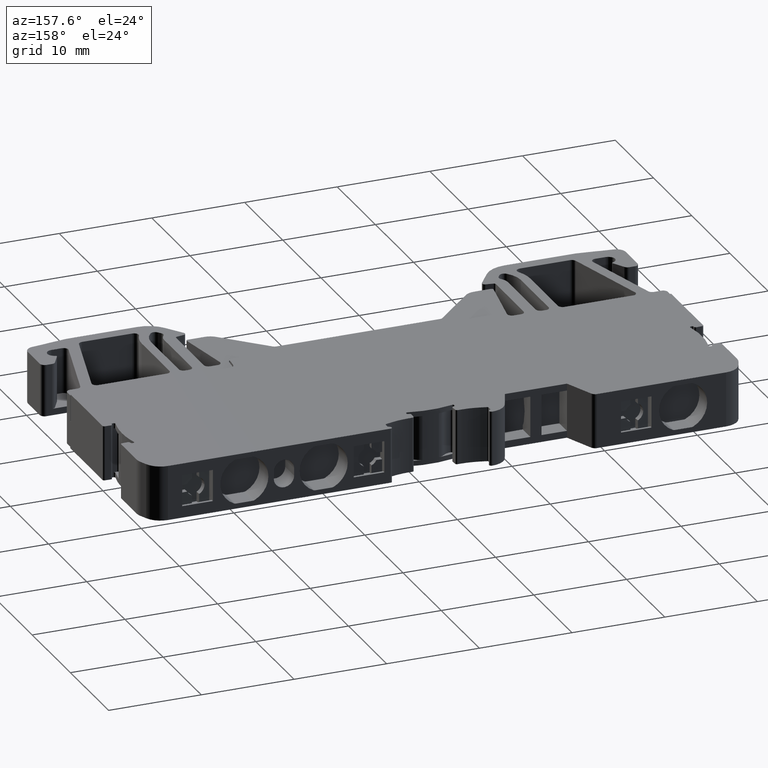
[diagram: clean part render]
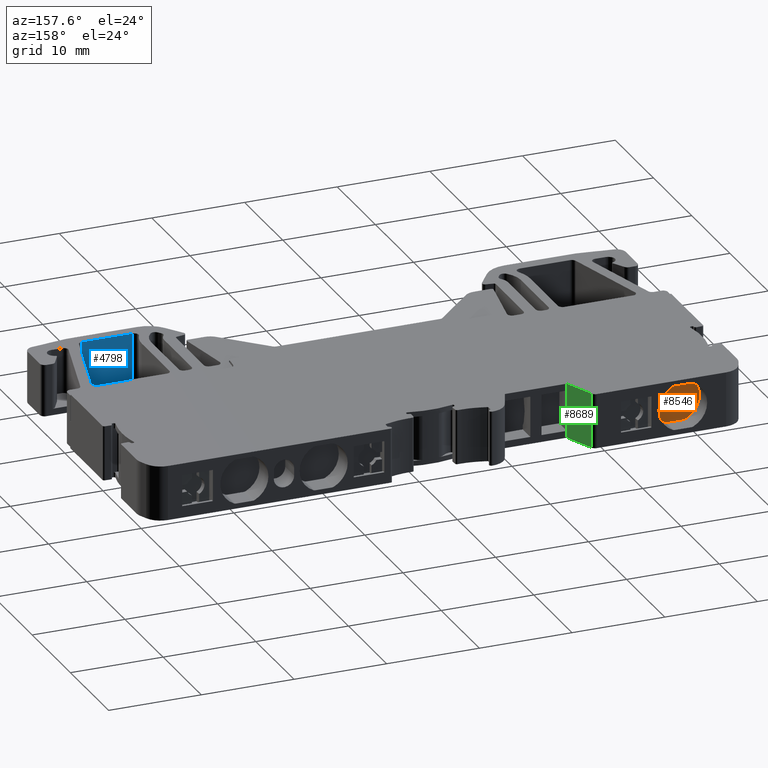
[diagram: same view with three faces highlighted in distinct colors, each labeled with its STEP entity id]
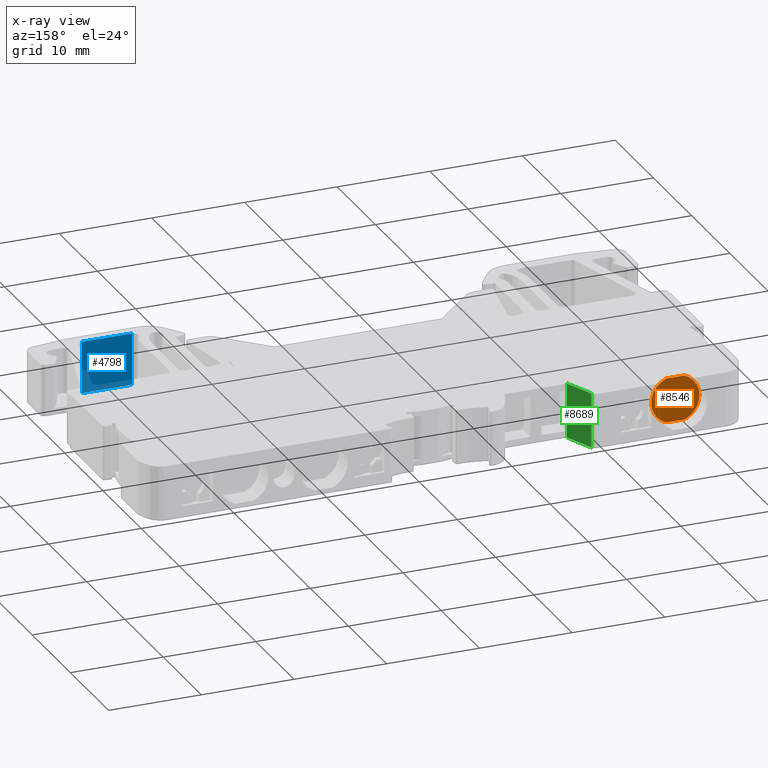
[diagram: x-ray of the same camera — body ghosted, the three highlighted faces saturated]
A machine part, auxiliary view with three faces highlighted in distinct colors.
The next image is the same camera in x-ray (body ghosted, the three faces saturated) — at least one of them is partly hidden behind the body in this view.
Their STEP definitions:

[orange] entity #8546 — the highlighted planar face has unit normal (0, 1, 0).
#2839 = VECTOR ( 'NONE', #11853, 1000.000000000000000 ) ;
#2843 = CIRCLE ( 'NONE', #2864, 0.4999999999999995600 ) ;
#2864 = AXIS2_PLACEMENT_3D ( 'NONE', #11866, #11854, #11864 ) ;
#2910 = CIRCLE ( 'NONE', #2911, 2.599999464194735000 ) ;
#2911 = AXIS2_PLACEMENT_3D ( 'NONE', #12035, #12044, #12016 ) ;
#2920 = AXIS2_PLACEMENT_3D ( 'NONE', #12100, #12106, #12101 ) ;
#2929 = AXIS2_PLACEMENT_3D ( 'NONE', #12068, #12058, #12066 ) ;
#2933 = CIRCLE ( 'NONE', #2929, 0.4999999999999995600 ) ;
#2938 = CIRCLE ( 'NONE', #2920, 0.5000000000000000000 ) ;
#2944 = AXIS2_PLACEMENT_3D ( 'NONE', #12063, #12064, #12110 ) ;
#2948 = VECTOR ( 'NONE', #12070, 1000.000000000000000 ) ;
#2949 = CIRCLE ( 'NONE', #2944, 2.599999464194735000 ) ;
#2965 = CIRCLE ( 'NONE', #2989, 0.5000000000000000000 ) ;
#2989 = AXIS2_PLACEMENT_3D ( 'NONE', #12158, #12159, #12160 ) ;
#3179 = ORIENTED_EDGE ( 'NONE', *, *, #8404, .T. ) ;
#3220 = ORIENTED_EDGE ( 'NONE', *, *, #8369, .T. ) ;
#3263 = ORIENTED_EDGE ( 'NONE', *, *, #8362, .T. ) ;
#3270 = ORIENTED_EDGE ( 'NONE', *, *, #8364, .F. ) ;
#3280 = ORIENTED_EDGE ( 'NONE', *, *, #8299, .T. ) ;
#3282 = ORIENTED_EDGE ( 'NONE', *, *, #8379, .T. ) ;
#3285 = ORIENTED_EDGE ( 'NONE', *, *, #8300, .F. ) ;
#3287 = ORIENTED_EDGE ( 'NONE', *, *, #8360, .T. ) ;
#3863 = EDGE_LOOP ( 'NONE', ( #3285, #3263, #3220, #3282, #3270, #3179, #3287, #3280 ) ) ;
#6797 = VERTEX_POINT ( 'NONE', #11224 ) ;
#6809 = VERTEX_POINT ( 'NONE', #11199 ) ;
#6830 = VERTEX_POINT ( 'NONE', #11290 ) ;
#6857 = VERTEX_POINT ( 'NONE', #11279 ) ;
#6875 = VERTEX_POINT ( 'NONE', #11311 ) ;
#6883 = VERTEX_POINT ( 'NONE', #11261 ) ;
#6891 = VERTEX_POINT ( 'NONE', #11371 ) ;
#6900 = VERTEX_POINT ( 'NONE', #11342 ) ;
#8299 = EDGE_CURVE ( 'NONE', #6875, #6797, #2843, .T. ) ;
#8300 = EDGE_CURVE ( 'NONE', #6830, #6797, #11848, .T. ) ;
#8360 = EDGE_CURVE ( 'NONE', #6900, #6875, #2910, .T. ) ;
#8362 = EDGE_CURVE ( 'NONE', #6830, #6857, #2933, .T. ) ;
#8364 = EDGE_CURVE ( 'NONE', #6809, #6883, #12052, .T. ) ;
#8369 = EDGE_CURVE ( 'NONE', #6857, #6891, #2949, .T. ) ;
#8379 = EDGE_CURVE ( 'NONE', #6891, #6883, #2938, .T. ) ;
#8404 = EDGE_CURVE ( 'NONE', #6809, #6900, #2965, .T. ) ;
#8546 = ADVANCED_FACE ( 'NONE', ( #13036 ), #13021, .T. ) ;
#9169 = AXIS2_PLACEMENT_3D ( 'NONE', #13008, #13006, #13016 ) ;
#11199 = CARTESIAN_POINT ( 'NONE',  ( -28.78601610234537100, -90.64413451042383900, 0.5000000000000000000 ) ) ;
#11224 = CARTESIAN_POINT ( 'NONE',  ( -28.78601610234537100, -90.64413451042383900, 5.299999999999999800 ) ) ;
#11261 = CARTESIAN_POINT ( 'NONE',  ( -26.99716423635066700, -90.64413451042383900, 0.5000000000000000000 ) ) ;
#11279 = CARTESIAN_POINT ( 'NONE',  ( -26.78420562653969500, -90.64413451042383900, 5.252381067803889400 ) ) ;
#11290 = CARTESIAN_POINT ( 'NONE',  ( -26.99716423635066700, -90.64413451042383900, 5.299999999999999800 ) ) ;
#11311 = CARTESIAN_POINT ( 'NONE',  ( -28.99897471215630400, -90.64413451042383900, 5.252381067803883100 ) ) ;
#11342 = CARTESIAN_POINT ( 'NONE',  ( -28.99897471215630400, -90.64413451042383900, 0.5476189321961166800 ) ) ;
#11371 = CARTESIAN_POINT ( 'NONE',  ( -26.78420562653968800, -90.64413451042383900, 0.5476189321961116900 ) ) ;
#11848 = LINE ( 'NONE', #11868, #2839 ) ;
#11853 = DIRECTION ( 'NONE',  ( -1.000000000000000000, 0.0000000000000000000, -0.0000000000000000000 ) ) ;
#11854 = DIRECTION ( 'NONE',  ( -0.0000000000000000000, 1.000000000000000000, -0.0000000000000000000 ) ) ;
#11864 = DIRECTION ( 'NONE',  ( -1.387778780781446900E-014, 0.0000000000000000000, -1.000000000000000000 ) ) ;
#11866 = CARTESIAN_POINT ( 'NONE',  ( -28.78601610234537100, -90.64413451042383900, 4.799999999999999800 ) ) ;
#11868 = CARTESIAN_POINT ( 'NONE',  ( -24.28236443227146800, -90.64413451042383900, 5.299999999999999800 ) ) ;
#12016 = DIRECTION ( 'NONE',  ( 1.334402948820669100E-015, 0.0000000000000000000, -1.000000000000000000 ) ) ;
#12035 = CARTESIAN_POINT ( 'NONE',  ( -27.89159016934796800, -90.64413451042383900, 2.899999999999999900 ) ) ;
#12044 = DIRECTION ( 'NONE',  ( -0.0000000000000000000, 1.000000000000000000, -0.0000000000000000000 ) ) ;
#12052 = LINE ( 'NONE', #12072, #2948 ) ;
#12058 = DIRECTION ( 'NONE',  ( -0.0000000000000000000, 1.000000000000000000, -0.0000000000000000000 ) ) ;
#12063 = CARTESIAN_POINT ( 'NONE',  ( -27.89159016934796800, -90.64413451042383900, 2.899999999999999900 ) ) ;
#12064 = DIRECTION ( 'NONE',  ( -0.0000000000000000000, 1.000000000000000000, -0.0000000000000000000 ) ) ;
#12066 = DIRECTION ( 'NONE',  ( -1.387778780781446900E-014, 0.0000000000000000000, -1.000000000000000000 ) ) ;
#12068 = CARTESIAN_POINT ( 'NONE',  ( -26.99716423635066700, -90.64413451042383900, 4.799999999999999800 ) ) ;
#12070 = DIRECTION ( 'NONE',  ( 1.000000000000000000, 0.0000000000000000000, -0.0000000000000000000 ) ) ;
#12072 = CARTESIAN_POINT ( 'NONE',  ( -24.28236443227146800, -90.64413451042383900, 0.5000000000000000000 ) ) ;
#12100 = CARTESIAN_POINT ( 'NONE',  ( -26.99716423635066700, -90.64413451042383900, 1.000000000000000000 ) ) ;
#12101 = DIRECTION ( 'NONE',  ( -2.775557561562891400E-014, 0.0000000000000000000, -1.000000000000000000 ) ) ;
#12106 = DIRECTION ( 'NONE',  ( -0.0000000000000000000, 1.000000000000000000, -0.0000000000000000000 ) ) ;
#12110 = DIRECTION ( 'NONE',  ( -1.334402948820669100E-015, 0.0000000000000000000, -1.000000000000000000 ) ) ;
#12158 = CARTESIAN_POINT ( 'NONE',  ( -28.78601610234537100, -90.64413451042383900, 1.000000000000000000 ) ) ;
#12159 = DIRECTION ( 'NONE',  ( -0.0000000000000000000, 1.000000000000000000, -0.0000000000000000000 ) ) ;
#12160 = DIRECTION ( 'NONE',  ( 0.0000000000000000000, 0.0000000000000000000, -1.000000000000000000 ) ) ;
#13006 = DIRECTION ( 'NONE',  ( 0.0000000000000000000, 1.000000000000000000, 0.0000000000000000000 ) ) ;
#13008 = CARTESIAN_POINT ( 'NONE',  ( -30.89789714336739500, -90.64413451042383900, -68.12189434494692400 ) ) ;
#13016 = DIRECTION ( 'NONE',  ( 0.0000000000000000000, -0.0000000000000000000, 1.000000000000000000 ) ) ;
#13021 = PLANE ( 'NONE',  #9169 ) ;
#13036 = FACE_OUTER_BOUND ( 'NONE', #3863, .T. ) ;

[blue] entity #4798 — the highlighted planar face has unit normal (0, -1, 0).
#438 = VECTOR ( 'NONE', #2048, 1000.000000000000000 ) ;
#600 = VECTOR ( 'NONE', #2570, 1000.000000000000000 ) ;
#745 = VECTOR ( 'NONE', #2107, 1000.000000000000000 ) ;
#1149 = VECTOR ( 'NONE', #1821, 1000.000000000000000 ) ;
#1812 = CARTESIAN_POINT ( 'NONE',  ( 18.48104946083881100, -120.3180765744508300, 5.700000000000000200 ) ) ;
#1821 = DIRECTION ( 'NONE',  ( 0.0000000000000000000, 0.0000000000000000000, -1.000000000000000000 ) ) ;
#1890 = LINE ( 'NONE', #1812, #1149 ) ;
#1994 = CARTESIAN_POINT ( 'NONE',  ( -53.74831438740593400, -120.3180765744508300, 0.1000000000000002600 ) ) ;
#2026 = LINE ( 'NONE', #1994, #438 ) ;
#2048 = DIRECTION ( 'NONE',  ( 1.000000000000000000, 0.0000000000000000000, 0.0000000000000000000 ) ) ;
#2107 = DIRECTION ( 'NONE',  ( 0.0000000000000000000, 0.0000000000000000000, -1.000000000000000000 ) ) ;
#2111 = CARTESIAN_POINT ( 'NONE',  ( 23.89256951862951800, -120.3180765744508300, 5.700000000000000200 ) ) ;
#2140 = LINE ( 'NONE', #2111, #745 ) ;
#2570 = DIRECTION ( 'NONE',  ( 1.000000000000000000, -0.0000000000000000000, -0.0000000000000000000 ) ) ;
#2582 = LINE ( 'NONE', #2594, #600 ) ;
#2594 = CARTESIAN_POINT ( 'NONE',  ( -53.89831438740593900, -120.3180765744508300, 5.700000000000000200 ) ) ;
#4798 = ADVANCED_FACE ( 'NONE', ( #10595 ), #10586, .F. ) ;
#7093 = VERTEX_POINT ( 'NONE', #12470 ) ;
#7107 = VERTEX_POINT ( 'NONE', #12434 ) ;
#7177 = VERTEX_POINT ( 'NONE', #11546 ) ;
#7210 = VERTEX_POINT ( 'NONE', #11555 ) ;
#7734 = ORIENTED_EDGE ( 'NONE', *, *, #10059, .T. ) ;
#7737 = ORIENTED_EDGE ( 'NONE', *, *, #9359, .F. ) ;
#7762 = ORIENTED_EDGE ( 'NONE', *, *, #9437, .T. ) ;
#7779 = ORIENTED_EDGE ( 'NONE', *, *, #9949, .F. ) ;
#9359 = EDGE_CURVE ( 'NONE', #7210, #7107, #1890, .T. ) ;
#9437 = EDGE_CURVE ( 'NONE', #7177, #7093, #2140, .T. ) ;
#9949 = EDGE_CURVE ( 'NONE', #7107, #7093, #2026, .T. ) ;
#10059 = EDGE_CURVE ( 'NONE', #7210, #7177, #2582, .T. ) ;
#10436 = AXIS2_PLACEMENT_3D ( 'NONE', #10596, #10627, #10629 ) ;
#10586 = PLANE ( 'NONE',  #10436 ) ;
#10595 = FACE_OUTER_BOUND ( 'NONE', #14444, .T. ) ;
#10596 = CARTESIAN_POINT ( 'NONE',  ( -53.74831438740593400, -120.3180765744508300, 5.700000000000000200 ) ) ;
#10627 = DIRECTION ( 'NONE',  ( 0.0000000000000000000, -1.000000000000000000, 0.0000000000000000000 ) ) ;
#10629 = DIRECTION ( 'NONE',  ( 0.0000000000000000000, 0.0000000000000000000, -1.000000000000000000 ) ) ;
#11546 = CARTESIAN_POINT ( 'NONE',  ( 23.89256951862951800, -120.3180765744508300, 5.700000000000000200 ) ) ;
#11555 = CARTESIAN_POINT ( 'NONE',  ( 18.48104946083881100, -120.3180765744508300, 5.700000000000000200 ) ) ;
#12434 = CARTESIAN_POINT ( 'NONE',  ( 18.48104946083881100, -120.3180765744508300, 0.1000000000000002600 ) ) ;
#12470 = CARTESIAN_POINT ( 'NONE',  ( 23.89256951862951800, -120.3180765744508300, 0.1000000000000002600 ) ) ;
#14444 = EDGE_LOOP ( 'NONE', ( #7737, #7734, #7762, #7779 ) ) ;

[green] entity #8689 — the highlighted planar face has unit normal (0.9239, 0.3827, -0).
#75 = CARTESIAN_POINT ( 'NONE',  ( -16.80856883384424100, -92.11814709042961600, -68.12189434494692400 ) ) ;
#76 = DIRECTION ( 'NONE',  ( -0.0000000000000000000, -0.0000000000000000000, -1.000000000000000000 ) ) ;
#87 = LINE ( 'NONE', #75, #8044 ) ;
#88 = LINE ( 'NONE', #101, #8132 ) ;
#101 = CARTESIAN_POINT ( 'NONE',  ( -16.91644963550811200, -91.85769524305830200, 5.849999999999994300 ) ) ;
#112 = DIRECTION ( 'NONE',  ( 0.3826777224417506900, -0.9238818976183018600, -0.0000000000000000000 ) ) ;
#113 = LINE ( 'NONE', #144, #8113 ) ;
#120 = LINE ( 'NONE', #123, #8108 ) ;
#122 = DIRECTION ( 'NONE',  ( -0.3826777224417520800, 0.9238818976183013100, 0.0000000000000000000 ) ) ;
#123 = CARTESIAN_POINT ( 'NONE',  ( -16.80857061631897800, -92.11814278707970500, -68.12189434494692400 ) ) ;
#124 = DIRECTION ( 'NONE',  ( -0.0000000000000000000, -0.0000000000000000000, -1.000000000000000000 ) ) ;
#144 = CARTESIAN_POINT ( 'NONE',  ( -16.80857061631897100, -92.11814278707970500, -0.05000000000000000300 ) ) ;
#197 = CARTESIAN_POINT ( 'NONE',  ( -18.13044554935527200, -88.92679860912450400, -68.12189434494692400 ) ) ;
#209 = LINE ( 'NONE', #197, #8135 ) ;
#212 = DIRECTION ( 'NONE',  ( 0.0000000000000000000, 0.0000000000000000000, 1.000000000000000000 ) ) ;
#2700 = VECTOR ( 'NONE', #11104, 1000.000000000000000 ) ;
#3070 = ORIENTED_EDGE ( 'NONE', *, *, #8953, .T. ) ;
#3074 = ORIENTED_EDGE ( 'NONE', *, *, #8957, .T. ) ;
#3081 = ORIENTED_EDGE ( 'NONE', *, *, #8987, .T. ) ;
#3088 = ORIENTED_EDGE ( 'NONE', *, *, #8944, .T. ) ;
#3096 = ORIENTED_EDGE ( 'NONE', *, *, #4932, .T. ) ;
#4421 = ORIENTED_EDGE ( 'NONE', *, *, #8954, .T. ) ;
#4932 = EDGE_CURVE ( 'NONE', #14708, #14703, #11087, .T. ) ;
#4969 = FACE_OUTER_BOUND ( 'NONE', #14342, .T. ) ;
#4971 = PLANE ( 'NONE',  #9659 ) ;
#4972 = CARTESIAN_POINT ( 'NONE',  ( -16.91644963550811200, -91.85769524305830200, -68.12189434494692400 ) ) ;
#4973 = DIRECTION ( 'NONE',  ( 0.9238818976183018600, 0.3826777224417506900, -0.0000000000000000000 ) ) ;
#4974 = DIRECTION ( 'NONE',  ( -0.3826777224417506900, 0.9238818976183018600, 0.0000000000000000000 ) ) ;
#5962 = CARTESIAN_POINT ( 'NONE',  ( -16.80856972508159300, -92.11814493875466800, 5.099999999999997000 ) ) ;
#5979 = CARTESIAN_POINT ( 'NONE',  ( -16.80856883384422000, -92.11814601459211400, 0.7000000000000031800 ) ) ;
#6006 = CARTESIAN_POINT ( 'NONE',  ( -16.80857002216071900, -92.11814422152967600, -0.04999999999999815700 ) ) ;
#6401 = CARTESIAN_POINT ( 'NONE',  ( -18.13044554935526500, -88.92679860912453200, 5.849999999999994300 ) ) ;
#6445 = CARTESIAN_POINT ( 'NONE',  ( -16.80857061631897100, -92.11814278707969100, 5.849999999999997000 ) ) ;
#6478 = CARTESIAN_POINT ( 'NONE',  ( -18.13044554935526500, -88.92679860912453200, -0.04999999999999586700 ) ) ;
#8044 = VECTOR ( 'NONE', #76, 1000.000000000000000 ) ;
#8108 = VECTOR ( 'NONE', #124, 1000.000000000000000 ) ;
#8113 = VECTOR ( 'NONE', #122, 1000.000000000000000 ) ;
#8132 = VECTOR ( 'NONE', #112, 1000.000000000000000 ) ;
#8135 = VECTOR ( 'NONE', #212, 1000.000000000000000 ) ;
#8689 = ADVANCED_FACE ( 'NONE', ( #4969 ), #4971, .T. ) ;
#8944 = EDGE_CURVE ( 'NONE', #14703, #14733, #87, .T. ) ;
#8953 = EDGE_CURVE ( 'NONE', #13527, #13560, #88, .T. ) ;
#8954 = EDGE_CURVE ( 'NONE', #14733, #13559, #113, .T. ) ;
#8957 = EDGE_CURVE ( 'NONE', #13560, #14708, #120, .T. ) ;
#8987 = EDGE_CURVE ( 'NONE', #13559, #13527, #209, .T. ) ;
#9659 = AXIS2_PLACEMENT_3D ( 'NONE', #4972, #4973, #4974 ) ;
#11087 = LINE ( 'NONE', #11088, #2700 ) ;
#11088 = CARTESIAN_POINT ( 'NONE',  ( -16.80856883384424100, -92.11814709042961600, -68.12189434494692400 ) ) ;
#11104 = DIRECTION ( 'NONE',  ( -0.0000000000000000000, -0.0000000000000000000, -1.000000000000000000 ) ) ;
#13527 = VERTEX_POINT ( 'NONE', #6401 ) ;
#13559 = VERTEX_POINT ( 'NONE', #6478 ) ;
#13560 = VERTEX_POINT ( 'NONE', #6445 ) ;
#14342 = EDGE_LOOP ( 'NONE', ( #3088, #4421, #3081, #3070, #3074, #3096 ) ) ;
#14703 = VERTEX_POINT ( 'NONE', #5979 ) ;
#14708 = VERTEX_POINT ( 'NONE', #5962 ) ;
#14733 = VERTEX_POINT ( 'NONE', #6006 ) ;